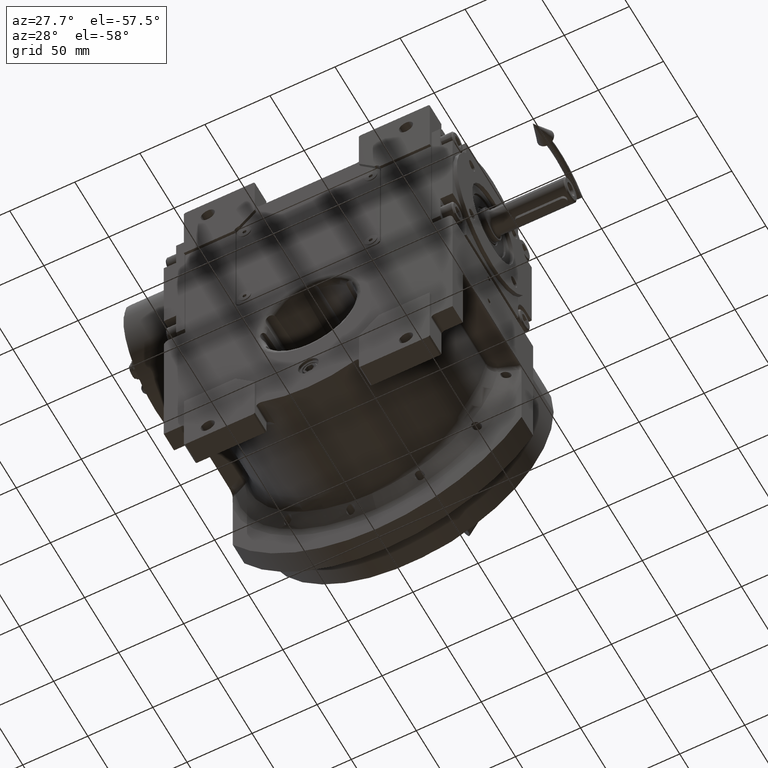
[diagram: clean part render]
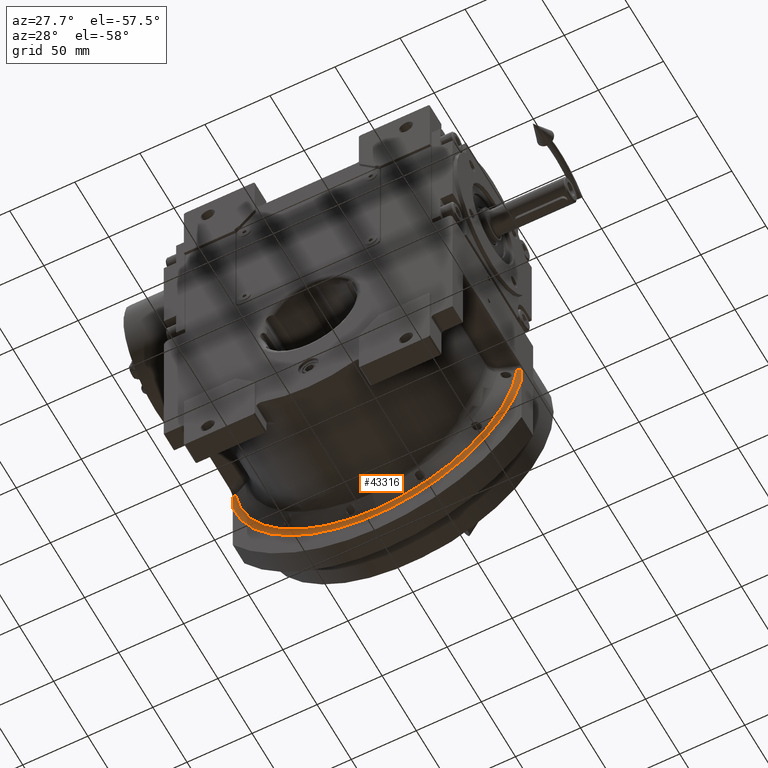
[diagram: same view with one face highlighted and labeled with its STEP entity id]
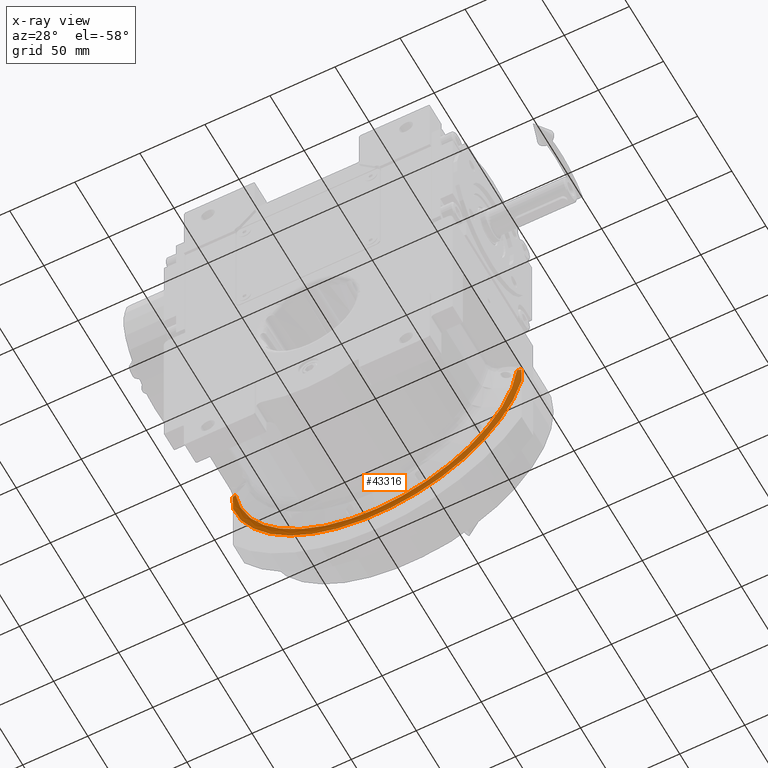
[diagram: x-ray of the same camera — body ghosted, the highlighted face saturated]
A machine part, auxiliary view. The second image highlights one B-rep face of the part: STEP entity #43316.
The next image is the same camera in x-ray: the body ghosted, the highlighted face saturated — about 0% of this face is hidden behind the body in this view.
In plain terms, the highlighted toroidal blend (fillet) surface has major radius 113.879 mm and minor (blend) radius 10 mm.
Its self-contained STEP definition (entity closure, byte-faithful):
#1533 = CARTESIAN_POINT ( 'NONE',  ( -110.9999999999999858, 47.49184152199143227, -23.26125549203704068 ) ) ;
#2055 = CARTESIAN_POINT ( 'NONE',  ( -111.0000000000000284, 47.38981798226070907, -17.67600262140464196 ) ) ;
#2578 = CARTESIAN_POINT ( 'NONE',  ( -110.9999998426041969, 47.24161804384319652, -11.75654023702319861 ) ) ;
#3337 = CARTESIAN_POINT ( 'NONE',  ( -108.2181486248951927, 46.16020982646139714, -11.98056577044130044 ) ) ;
#3867 = CARTESIAN_POINT ( 'NONE',  ( -58.33770022237654018, 46.16024937670292871, -108.8793721944054340 ) ) ;
#4181 = CARTESIAN_POINT ( 'NONE',  ( 110.9999999999999432, 47.30109702303251140, -14.03657177442504000 ) ) ;
#4689 = CARTESIAN_POINT ( 'NONE',  ( 108.2182055107325880, 46.16026080517839603, -11.98086067912928065 ) ) ;
#5969 = EDGE_CURVE ( 'NONE', #54638, #95707, #41730, .T. ) ;
#6357 = EDGE_CURVE ( 'NONE', #54638, #97932, #89556, .T. ) ;
#6703 = VERTEX_POINT ( 'NONE', #53971 ) ;
#7274 = B_SPLINE_CURVE_WITH_KNOTS ( 'NONE', 3,
 ( #100098, #67666, #29534, #21844, #77433, #99093 ),
 .UNSPECIFIED., .F., .F.,
 ( 4, 2, 4 ),
 ( 0.000000000000000000, 0.5000000000000000000, 1.000000000000000000 ),
 .UNSPECIFIED. ) ;
#12519 = DIRECTION ( 'NONE',  ( -0.9987228073795436645, 0.000000000000000000, -0.05052478619373559215 ) ) ;
#13533 = EDGE_LOOP ( 'NONE', ( #53238, #62547, #73116, #47060, #88453, #41942, #45799 ) ) ;
#16336 = B_SPLINE_CURVE_WITH_KNOTS ( 'NONE', 3,
 ( #72077, #1533, #49425, #72589, #2055, #64344, #64872, #96271, #25715, #57147, #88566, #18014, #2578 ),
 .UNSPECIFIED., .F., .F.,
 ( 4, 1, 1, 2, 2, 1, 1, 1, 4 ),
 ( 0.000000000000000000, 0.4999999999999906741, 0.5624999999999891198, 0.5703124999999893419, 0.5781249999999896749, 0.5937499999999901190, 0.6249999999999905631, 0.7499999999999935607, 1.000000000000000000 ),
 .UNSPECIFIED. ) ;
#17133 = CARTESIAN_POINT ( 'NONE',  ( -6.107335892911600708E-14, 46.16024936020976099, -108.8793717567185979 ) ) ;
#18014 = CARTESIAN_POINT ( 'NONE',  ( -111.0000000000000284, 47.26671036820440008, -12.69711666045169274 ) ) ;
#18027 = CARTESIAN_POINT ( 'NONE',  ( 110.9999998869266022, 47.24161831933449918, -11.75654022255562126 ) ) ;
#20744 = DIRECTION ( 'NONE',  ( 0.000000000000000000, 1.000000000000000000, 0.000000000000000000 ) ) ;
#21844 = CARTESIAN_POINT ( 'NONE',  ( -109.9037689433001930, 46.93895356715016476, -11.84632748395139146 ) ) ;
#22247 = CARTESIAN_POINT ( 'NONE',  ( -9.947598300641398816E-14, 47.50000000000000000, -5.684341886080798963E-14 ) ) ;
#23637 = CARTESIAN_POINT ( 'NONE',  ( 111.0000000000000000, 47.38034144301978046, -17.28637658354777784 ) ) ;
#24138 = CARTESIAN_POINT ( 'NONE',  ( 110.9999999999999574, 47.49300976463167956, -23.37757664004382363 ) ) ;
#25715 = CARTESIAN_POINT ( 'NONE',  ( -111.0000000000000000, 47.37801887890174868, -17.18315811918595060 ) ) ;
#25758 = EDGE_CURVE ( 'NONE', #6703, #97932, #80009, .T. ) ;
#27168 = CARTESIAN_POINT ( 'NONE',  ( 110.9999999999999716, 47.37947912676571605, -17.25058397870262894 ) ) ;
#29380 = CARTESIAN_POINT ( 'NONE',  ( 111.0000000000000000, 47.50000000000000000, -25.44626115736659955 ) ) ;
#29534 = CARTESIAN_POINT ( 'NONE',  ( -108.9781506155099464, 46.56477920288156724, -11.92076974956339086 ) ) ;
#30747 = CIRCLE ( 'NONE', #71875, 113.8793756871230158 ) ;
#35166 = FACE_OUTER_BOUND ( 'NONE', #13533, .T. ) ;
#35538 = CARTESIAN_POINT ( 'NONE',  ( 110.9999999999999858, 47.35262548411426309, -16.14045418600772308 ) ) ;
#35713 = CARTESIAN_POINT ( 'NONE',  ( -101.7990064294248214, 46.16025384316066038, -69.96404336023731219 ) ) ;
#37545 = CARTESIAN_POINT ( 'NONE',  ( 111.0000000000000000, 47.50000000000000000, -25.44626115736659955 ) ) ;
#37798 = TOROIDAL_SURFACE ( 'NONE', #95360, 113.8793756871230016, 10.00000000000000000 ) ;
#38642 = VERTEX_POINT ( 'NONE', #98132 ) ;
#39055 = CARTESIAN_POINT ( 'NONE',  ( 110.9999998869266022, 47.24161831933449918, -11.75654022255562126 ) ) ;
#39415 = VERTEX_POINT ( 'NONE', #75595 ) ;
#39589 = CARTESIAN_POINT ( 'NONE',  ( 110.9999999999999289, 47.46019542777067812, -20.85051949887152745 ) ) ;
#41730 = B_SPLINE_CURVE_WITH_KNOTS ( 'NONE', 3,
 ( #43275, #74714, #4181, #35538, #63277, #62268, #27168, #23637, #94686, #100901, #39589, #24138, #37545 ),
 .UNSPECIFIED., .F., .F.,
 ( 4, 1, 1, 1, 2, 2, 1, 1, 4 ),
 ( 0.000000000000000000, 0.2499999999999993339, 0.3749999999999991673, 0.3906249999999991673, 0.3984374999999988898, 0.4062499999999986122, 0.4374999999999987788, 0.4999999999999991118, 1.000000000000000000 ),
 .UNSPECIFIED. ) ;
#41942 = ORIENTED_EDGE ( 'NONE', *, *, #6357, .T. ) ;
#43275 = CARTESIAN_POINT ( 'NONE',  ( 110.9999998869266022, 47.24161831933449918, -11.75654022255562126 ) ) ;
#43316 = ADVANCED_FACE ( 'NONE', ( #35166 ), #37798, .F. ) ;
#44403 = CARTESIAN_POINT ( 'NONE',  ( -9.237055564881299892E-14, 37.50000000000000000, -8.171241461241149613E-14 ) ) ;
#45799 = ORIENTED_EDGE ( 'NONE', *, *, #25758, .F. ) ;
#46923 = EDGE_CURVE ( 'NONE', #39415, #38642, #7274, .T. ) ;
#46988 = CARTESIAN_POINT ( 'NONE',  ( 108.2182055107325880, 46.16026080517839603, -11.98086067912928065 ) ) ;
#47060 = ORIENTED_EDGE ( 'NONE', *, *, #71419, .T. ) ;
#48530 = CARTESIAN_POINT ( 'NONE',  ( 58.33757220637139795, 46.16024934371661459, -108.8793713190323729 ) ) ;
#48918 = CARTESIAN_POINT ( 'NONE',  ( 108.2182055107325880, 46.16026080517839603, -11.98086067912928065 ) ) ;
#49425 = CARTESIAN_POINT ( 'NONE',  ( -110.9999999999999858, 47.45869610671962846, -20.70783326501533494 ) ) ;
#53238 = ORIENTED_EDGE ( 'NONE', *, *, #64096, .F. ) ;
#53971 = CARTESIAN_POINT ( 'NONE',  ( -6.107335892911600708E-14, 46.16024936020976099, -108.8793717567185979 ) ) ;
#54638 = VERTEX_POINT ( 'NONE', #39055 ) ;
#57147 = CARTESIAN_POINT ( 'NONE',  ( -110.9999999999999716, 47.35640947859300098, -16.28572579493090444 ) ) ;
#60434 =( BOUNDED_CURVE ( )  B_SPLINE_CURVE ( 3, ( #3337, #35713, #3867, #67133 ),
 .UNSPECIFIED., .F., .F. ) 
 B_SPLINE_CURVE_WITH_KNOTS ( ( 4, 4 ),
 ( 4.894359738531879778, 6.354897060524587360 ),
 .UNSPECIFIED. ) 
 CURVE ( )  GEOMETRIC_REPRESENTATION_ITEM ( )  RATIONAL_B_SPLINE_CURVE ( ( 1.000000000000000000, 0.8299968090623841555, 0.8299968090623841555, 1.000000000000000000 ) ) 
 REPRESENTATION_ITEM ( '' )  );
#62268 = CARTESIAN_POINT ( 'NONE',  ( 110.9999999999999574, 47.37721023959501565, -17.15660303781627150 ) ) ;
#62547 = ORIENTED_EDGE ( 'NONE', *, *, #46923, .T. ) ;
#63277 = CARTESIAN_POINT ( 'NONE',  ( 110.9999999999999858, 47.37382107352491545, -17.01630155678829581 ) ) ;
#64096 = EDGE_CURVE ( 'NONE', #39415, #6703, #60434, .T. ) ;
#64344 = CARTESIAN_POINT ( 'NONE',  ( -111.0000000000000142, 47.38804427955523835, -17.60168279826294579 ) ) ;
#64872 = CARTESIAN_POINT ( 'NONE',  ( -111.0000000000000142, 47.38697793714037942, -17.55712914402924696 ) ) ;
#66476 = EDGE_CURVE ( 'NONE', #83415, #38642, #16336, .T. ) ;
#67133 = CARTESIAN_POINT ( 'NONE',  ( -6.107335892911600708E-14, 46.16024936020976099, -108.8793717567185979 ) ) ;
#67666 = CARTESIAN_POINT ( 'NONE',  ( -108.5720257659131534, 46.36153724422366906, -11.95314572303506395 ) ) ;
#71419 = EDGE_CURVE ( 'NONE', #83415, #95707, #30747, .T. ) ;
#71875 = AXIS2_PLACEMENT_3D ( 'NONE', #22247, #77347, #85086 ) ;
#72077 = CARTESIAN_POINT ( 'NONE',  ( -111.0000000000000000, 47.50000000000000000, -25.44626115736729588 ) ) ;
#72090 = CARTESIAN_POINT ( 'NONE',  ( 110.4235987460407671, 47.10989188117843440, -11.80426955000224964 ) ) ;
#72589 = CARTESIAN_POINT ( 'NONE',  ( -111.0000000000000142, 47.39775283363938030, -18.01025571059393826 ) ) ;
#72899 = CARTESIAN_POINT ( 'NONE',  ( -111.0000000000000000, 47.50000000000000000, -25.44626115736729588 ) ) ;
#73116 = ORIENTED_EDGE ( 'NONE', *, *, #66476, .F. ) ;
#74714 = CARTESIAN_POINT ( 'NONE',  ( 110.9999999999999574, 47.26250817921272329, -12.53135113091263264 ) ) ;
#75595 = CARTESIAN_POINT ( 'NONE',  ( -108.2181486248951927, 46.16020982646139714, -11.98056577044130044 ) ) ;
#77347 = DIRECTION ( 'NONE',  ( 0.000000000000000000, -1.000000000000000000, 0.000000000000000000 ) ) ;
#77433 = CARTESIAN_POINT ( 'NONE',  ( -110.4234585868003222, 47.10985980794839634, -11.80427979343789069 ) ) ;
#79960 = CARTESIAN_POINT ( 'NONE',  ( 101.7988371762501458, 46.16025378558333614, -69.96418493751507128 ) ) ;
#80009 =( BOUNDED_CURVE ( )  B_SPLINE_CURVE ( 3, ( #17133, #48530, #79960, #46988 ),
 .UNSPECIFIED., .F., .F. ) 
 B_SPLINE_CURVE_WITH_KNOTS ( ( 4, 4 ),
 ( 0.07171175334500150267, 1.532246419677093741 ),
 .UNSPECIFIED. ) 
 CURVE ( )  GEOMETRIC_REPRESENTATION_ITEM ( )  RATIONAL_B_SPLINE_CURVE ( ( 1.000000000000000000, 0.8299973995656204639, 0.8299973995656204639, 1.000000000000000000 ) ) 
 REPRESENTATION_ITEM ( '' )  );
#80856 = CARTESIAN_POINT ( 'NONE',  ( 109.9039732449431170, 46.93902478097685815, -11.84631214861205706 ) ) ;
#83415 = VERTEX_POINT ( 'NONE', #72899 ) ;
#85086 = DIRECTION ( 'NONE',  ( -0.9747155648707268583, 0.000000000000000000, -0.2234492506112734644 ) ) ;
#88453 = ORIENTED_EDGE ( 'NONE', *, *, #5969, .F. ) ;
#88566 = CARTESIAN_POINT ( 'NONE',  ( -111.0000000000000284, 47.30739276393136095, -14.28307552350015541 ) ) ;
#88579 = CARTESIAN_POINT ( 'NONE',  ( 108.5721546957471020, 46.36161021549431638, -11.95313475060374131 ) ) ;
#89556 = B_SPLINE_CURVE_WITH_KNOTS ( 'NONE', 3,
 ( #18027, #72090, #80856, #89613, #88579, #48918 ),
 .UNSPECIFIED., .F., .F.,
 ( 4, 2, 4 ),
 ( 0.000000000000000000, 0.5000000000000000000, 1.000000000000000000 ),
 .UNSPECIFIED. ) ;
#89613 = CARTESIAN_POINT ( 'NONE',  ( 108.9783490142804538, 46.56487083118202719, -11.92075401756932429 ) ) ;
#94686 = CARTESIAN_POINT ( 'NONE',  ( 110.9999999999999574, 47.38500262563848509, -17.48094355212767326 ) ) ;
#95360 = AXIS2_PLACEMENT_3D ( 'NONE', #44403, #20744, #12519 ) ;
#95707 = VERTEX_POINT ( 'NONE', #29380 ) ;
#96271 = CARTESIAN_POINT ( 'NONE',  ( -111.0000000000000568, 47.38398366112607363, -17.43201616111707608 ) ) ;
#97932 = VERTEX_POINT ( 'NONE', #4689 ) ;
#98132 = CARTESIAN_POINT ( 'NONE',  ( -110.9999998426041969, 47.24161804384319652, -11.75654023702319861 ) ) ;
#99093 = CARTESIAN_POINT ( 'NONE',  ( -110.9999998426041969, 47.24161804384319652, -11.75654023702319861 ) ) ;
#100098 = CARTESIAN_POINT ( 'NONE',  ( -108.2181486248951927, 46.16020982646139714, -11.98056577044130044 ) ) ;
#100901 = CARTESIAN_POINT ( 'NONE',  ( 110.9999999999999147, 47.39592956473512686, -17.94582316151957713 ) ) ;